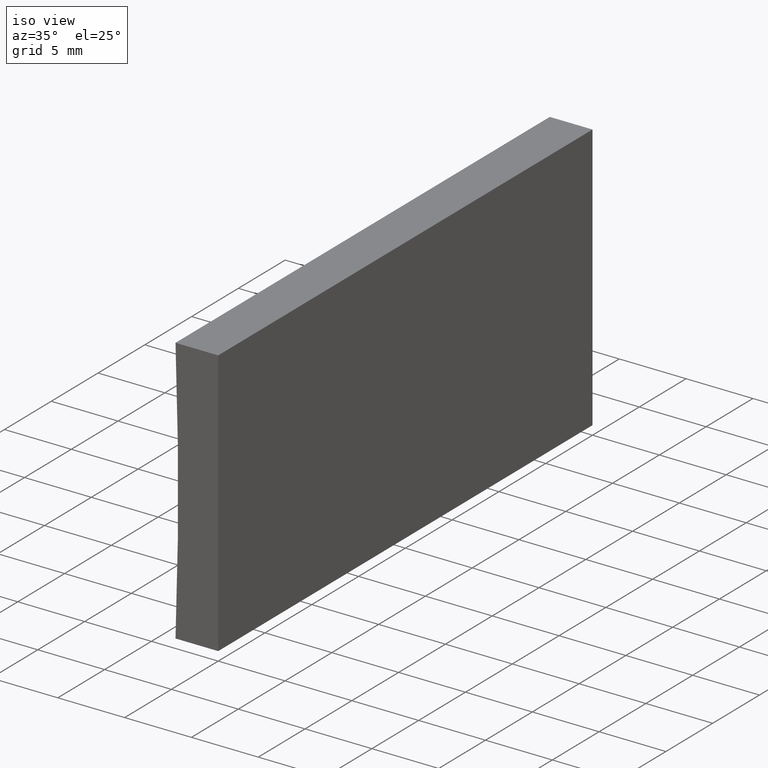
[diagram: clean part render]
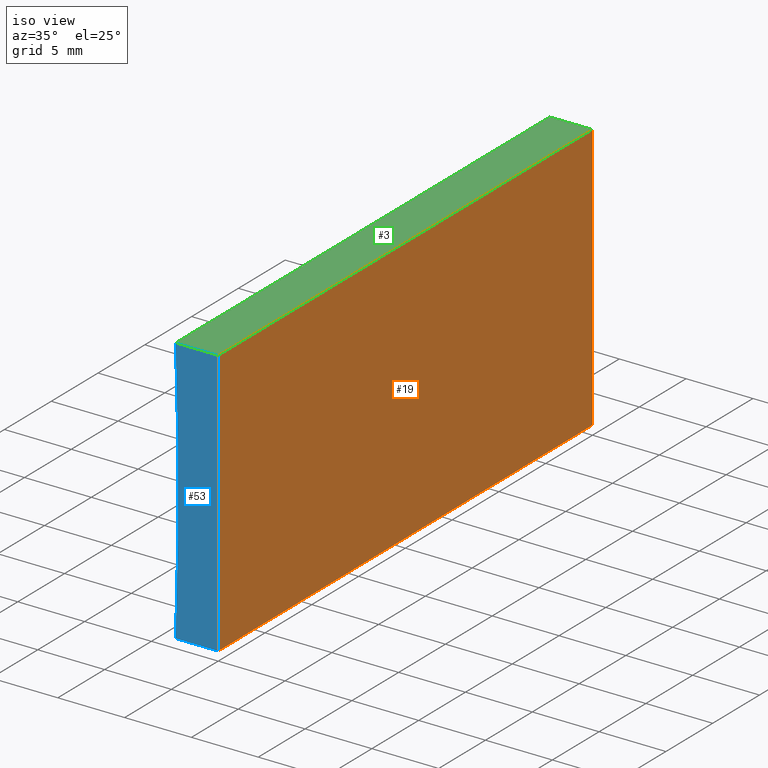
[diagram: same view with three faces highlighted in distinct colors, each labeled with its STEP entity id]
A machine part, iso view with three faces highlighted in distinct colors.
Their STEP definitions:

[orange] entity #19 — the highlighted planar face has unit normal (-1, 0, 0).
#8 = VECTOR ( 'NONE', #9, 1000.000000000000000 ) ;
#9 = DIRECTION ( 'NONE',  ( -0.0000000000000000000, -1.000000000000000000, -0.0000000000000000000 ) ) ;
#14 = LINE ( 'NONE', #89, #8 ) ;
#19 = ADVANCED_FACE ( 'NONE', ( #30 ), #62, .F. ) ;
#28 = ORIENTED_EDGE ( 'NONE', *, *, #119, .T. ) ;
#30 = FACE_OUTER_BOUND ( 'NONE', #175, .T. ) ;
#38 = ORIENTED_EDGE ( 'NONE', *, *, #171, .F. ) ;
#56 = LINE ( 'NONE', #110, #195 ) ;
#57 = VERTEX_POINT ( 'NONE', #169 ) ;
#58 = DIRECTION ( 'NONE',  ( -1.000000000000000000, 0.0000000000000000000, 6.123233995736766000E-017 ) ) ;
#62 = PLANE ( 'NONE',  #65 ) ;
#65 = AXIS2_PLACEMENT_3D ( 'NONE', #180, #58, #185 ) ;
#73 = ORIENTED_EDGE ( 'NONE', *, *, #142, .T. ) ;
#74 = VERTEX_POINT ( 'NONE', #158 ) ;
#80 = DIRECTION ( 'NONE',  ( -6.123233995736766000E-017, -0.0000000000000000000, -1.000000000000000000 ) ) ;
#89 = CARTESIAN_POINT ( 'NONE',  ( 0.0000000000000000000, 40.00000000000000000, 0.0000000000000000000 ) ) ;
#91 = DIRECTION ( 'NONE',  ( -6.123233995736766000E-017, -0.0000000000000000000, -1.000000000000000000 ) ) ;
#92 = LINE ( 'NONE', #114, #150 ) ;
#97 = CARTESIAN_POINT ( 'NONE',  ( 1.224646799147353300E-015, 40.00000000000000000, 20.00000000000000000 ) ) ;
#110 = CARTESIAN_POINT ( 'NONE',  ( 1.224646799147353300E-015, 40.00000000000000000, 20.00000000000000000 ) ) ;
#111 = VERTEX_POINT ( 'NONE', #137 ) ;
#114 = CARTESIAN_POINT ( 'NONE',  ( 0.0000000000000000000, 40.00000000000000000, 0.0000000000000000000 ) ) ;
#119 = EDGE_CURVE ( 'NONE', #74, #111, #178, .T. ) ;
#121 = DIRECTION ( 'NONE',  ( -0.0000000000000000000, -1.000000000000000000, -0.0000000000000000000 ) ) ;
#136 = EDGE_CURVE ( 'NONE', #165, #57, #92, .T. ) ;
#137 = CARTESIAN_POINT ( 'NONE',  ( 0.0000000000000000000, 0.0000000000000000000, 0.0000000000000000000 ) ) ;
#139 = CARTESIAN_POINT ( 'NONE',  ( 0.0000000000000000000, 0.0000000000000000000, 0.0000000000000000000 ) ) ;
#142 = EDGE_CURVE ( 'NONE', #165, #74, #56, .T. ) ;
#148 = ORIENTED_EDGE ( 'NONE', *, *, #136, .F. ) ;
#150 = VECTOR ( 'NONE', #91, 1000.000000000000000 ) ;
#158 = CARTESIAN_POINT ( 'NONE',  ( 1.224646799147353300E-015, 0.0000000000000000000, 20.00000000000000000 ) ) ;
#165 = VERTEX_POINT ( 'NONE', #97 ) ;
#169 = CARTESIAN_POINT ( 'NONE',  ( 0.0000000000000000000, 40.00000000000000000, 0.0000000000000000000 ) ) ;
#171 = EDGE_CURVE ( 'NONE', #57, #111, #14, .T. ) ;
#175 = EDGE_LOOP ( 'NONE', ( #28, #38, #148, #73 ) ) ;
#178 = LINE ( 'NONE', #139, #186 ) ;
#180 = CARTESIAN_POINT ( 'NONE',  ( 0.0000000000000000000, 40.00000000000000000, 0.0000000000000000000 ) ) ;
#185 = DIRECTION ( 'NONE',  ( 6.123233995736766000E-017, 0.0000000000000000000, 1.000000000000000000 ) ) ;
#186 = VECTOR ( 'NONE', #80, 1000.000000000000000 ) ;
#195 = VECTOR ( 'NONE', #121, 1000.000000000000000 ) ;

[blue] entity #53 — the highlighted planar face has unit normal (0, 1, 0).
#21 = VERTEX_POINT ( 'NONE', #146 ) ;
#24 = CARTESIAN_POINT ( 'NONE',  ( -261.5000000000000000, 0.0000000000000000000, 10.00000000000003600 ) ) ;
#33 = DIRECTION ( 'NONE',  ( -1.000000000000000000, 0.0000000000000000000, -1.086410295692778200E-015 ) ) ;
#36 = ORIENTED_EDGE ( 'NONE', *, *, #119, .F. ) ;
#40 = VECTOR ( 'NONE', #33, 1000.000000000000000 ) ;
#46 = DIRECTION ( 'NONE',  ( 0.0000000000000000000, 1.000000000000000000, 0.0000000000000000000 ) ) ;
#47 = LINE ( 'NONE', #198, #179 ) ;
#53 = ADVANCED_FACE ( 'NONE', ( #189 ), #141, .F. ) ;
#54 = LINE ( 'NONE', #170, #40 ) ;
#64 = DIRECTION ( 'NONE',  ( -0.0000000000000000000, -1.000000000000000000, -0.0000000000000000000 ) ) ;
#66 = CIRCLE ( 'NONE', #183, 258.5000000000000000 ) ;
#74 = VERTEX_POINT ( 'NONE', #158 ) ;
#75 = ORIENTED_EDGE ( 'NONE', *, *, #116, .F. ) ;
#80 = DIRECTION ( 'NONE',  ( -6.123233995736766000E-017, -0.0000000000000000000, -1.000000000000000000 ) ) ;
#94 = DIRECTION ( 'NONE',  ( 0.0000000000000000000, 0.0000000000000000000, 1.000000000000000000 ) ) ;
#103 = EDGE_LOOP ( 'NONE', ( #135, #36, #75, #203 ) ) ;
#109 = EDGE_CURVE ( 'NONE', #191, #21, #66, .T. ) ;
#111 = VERTEX_POINT ( 'NONE', #137 ) ;
#116 = EDGE_CURVE ( 'NONE', #21, #74, #47, .T. ) ;
#119 = EDGE_CURVE ( 'NONE', #74, #111, #178, .T. ) ;
#135 = ORIENTED_EDGE ( 'NONE', *, *, #161, .F. ) ;
#137 = CARTESIAN_POINT ( 'NONE',  ( 0.0000000000000000000, 0.0000000000000000000, 0.0000000000000000000 ) ) ;
#139 = CARTESIAN_POINT ( 'NONE',  ( 0.0000000000000000000, 0.0000000000000000000, 0.0000000000000000000 ) ) ;
#141 = PLANE ( 'NONE',  #187 ) ;
#146 = CARTESIAN_POINT ( 'NONE',  ( -3.193496016844379300, 0.0000000000000000000, 20.00000000000000400 ) ) ;
#158 = CARTESIAN_POINT ( 'NONE',  ( 1.224646799147353300E-015, 0.0000000000000000000, 20.00000000000000000 ) ) ;
#159 = CARTESIAN_POINT ( 'NONE',  ( -261.5000000000000000, 0.0000000000000000000, 10.00000000000003600 ) ) ;
#161 = EDGE_CURVE ( 'NONE', #111, #191, #54, .T. ) ;
#170 = CARTESIAN_POINT ( 'NONE',  ( 0.0000000000000000000, 0.0000000000000000000, 0.0000000000000000000 ) ) ;
#178 = LINE ( 'NONE', #139, #186 ) ;
#179 = VECTOR ( 'NONE', #200, 1000.000000000000000 ) ;
#181 = CARTESIAN_POINT ( 'NONE',  ( -3.193496016844377100, 0.0000000000000000000, -1.734723475976807100E-014 ) ) ;
#182 = DIRECTION ( 'NONE',  ( 0.0000000000000000000, -0.0000000000000000000, 1.000000000000000000 ) ) ;
#183 = AXIS2_PLACEMENT_3D ( 'NONE', #24, #64, #94 ) ;
#186 = VECTOR ( 'NONE', #80, 1000.000000000000000 ) ;
#187 = AXIS2_PLACEMENT_3D ( 'NONE', #159, #46, #182 ) ;
#189 = FACE_OUTER_BOUND ( 'NONE', #103, .T. ) ;
#191 = VERTEX_POINT ( 'NONE', #181 ) ;
#198 = CARTESIAN_POINT ( 'NONE',  ( 1.224646799147353300E-015, 0.0000000000000000000, 20.00000000000000000 ) ) ;
#200 = DIRECTION ( 'NONE',  ( 1.000000000000000000, -0.0000000000000000000, -1.086410295692778600E-015 ) ) ;
#203 = ORIENTED_EDGE ( 'NONE', *, *, #109, .F. ) ;

[green] entity #3 — the highlighted planar face has unit normal (-0, 0, -1).
#3 = ADVANCED_FACE ( 'NONE', ( #160 ), #7, .F. ) ;
#7 = PLANE ( 'NONE',  #25 ) ;
#12 = LINE ( 'NONE', #123, #122 ) ;
#21 = VERTEX_POINT ( 'NONE', #146 ) ;
#25 = AXIS2_PLACEMENT_3D ( 'NONE', #44, #71, #163 ) ;
#29 = DIRECTION ( 'NONE',  ( 1.000000000000000000, -0.0000000000000000000, -1.086410295692778600E-015 ) ) ;
#35 = VECTOR ( 'NONE', #45, 1000.000000000000000 ) ;
#44 = CARTESIAN_POINT ( 'NONE',  ( 1.224646799147353300E-015, 40.00000000000000000, 20.00000000000000000 ) ) ;
#45 = DIRECTION ( 'NONE',  ( -0.0000000000000000000, -1.000000000000000000, -0.0000000000000000000 ) ) ;
#47 = LINE ( 'NONE', #198, #179 ) ;
#50 = LINE ( 'NONE', #197, #35 ) ;
#55 = ORIENTED_EDGE ( 'NONE', *, *, #116, .T. ) ;
#56 = LINE ( 'NONE', #110, #195 ) ;
#69 = ORIENTED_EDGE ( 'NONE', *, *, #149, .F. ) ;
#71 = DIRECTION ( 'NONE',  ( -1.086410295692778600E-015, 0.0000000000000000000, -1.000000000000000000 ) ) ;
#74 = VERTEX_POINT ( 'NONE', #158 ) ;
#95 = EDGE_LOOP ( 'NONE', ( #55, #131, #69, #134 ) ) ;
#97 = CARTESIAN_POINT ( 'NONE',  ( 1.224646799147353300E-015, 40.00000000000000000, 20.00000000000000000 ) ) ;
#110 = CARTESIAN_POINT ( 'NONE',  ( 1.224646799147353300E-015, 40.00000000000000000, 20.00000000000000000 ) ) ;
#116 = EDGE_CURVE ( 'NONE', #21, #74, #47, .T. ) ;
#117 = VERTEX_POINT ( 'NONE', #140 ) ;
#121 = DIRECTION ( 'NONE',  ( -0.0000000000000000000, -1.000000000000000000, -0.0000000000000000000 ) ) ;
#122 = VECTOR ( 'NONE', #29, 1000.000000000000000 ) ;
#123 = CARTESIAN_POINT ( 'NONE',  ( 1.224646799147353300E-015, 40.00000000000000000, 20.00000000000000000 ) ) ;
#131 = ORIENTED_EDGE ( 'NONE', *, *, #142, .F. ) ;
#134 = ORIENTED_EDGE ( 'NONE', *, *, #156, .T. ) ;
#140 = CARTESIAN_POINT ( 'NONE',  ( -3.193496016844379300, 40.00000000000000000, 20.00000000000000400 ) ) ;
#142 = EDGE_CURVE ( 'NONE', #165, #74, #56, .T. ) ;
#146 = CARTESIAN_POINT ( 'NONE',  ( -3.193496016844379300, 0.0000000000000000000, 20.00000000000000400 ) ) ;
#149 = EDGE_CURVE ( 'NONE', #117, #165, #12, .T. ) ;
#156 = EDGE_CURVE ( 'NONE', #117, #21, #50, .T. ) ;
#158 = CARTESIAN_POINT ( 'NONE',  ( 1.224646799147353300E-015, 0.0000000000000000000, 20.00000000000000000 ) ) ;
#160 = FACE_OUTER_BOUND ( 'NONE', #95, .T. ) ;
#163 = DIRECTION ( 'NONE',  ( -1.000000000000000000, 0.0000000000000000000, 1.086410295692778600E-015 ) ) ;
#165 = VERTEX_POINT ( 'NONE', #97 ) ;
#179 = VECTOR ( 'NONE', #200, 1000.000000000000000 ) ;
#195 = VECTOR ( 'NONE', #121, 1000.000000000000000 ) ;
#197 = CARTESIAN_POINT ( 'NONE',  ( -3.193496016844379300, 40.00000000000000000, 20.00000000000000400 ) ) ;
#198 = CARTESIAN_POINT ( 'NONE',  ( 1.224646799147353300E-015, 0.0000000000000000000, 20.00000000000000000 ) ) ;
#200 = DIRECTION ( 'NONE',  ( 1.000000000000000000, -0.0000000000000000000, -1.086410295692778600E-015 ) ) ;